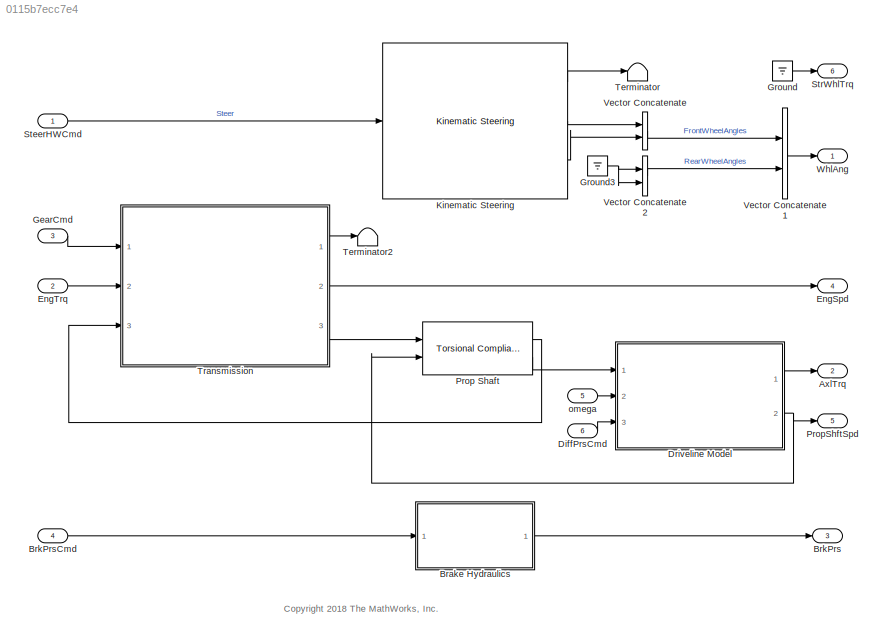
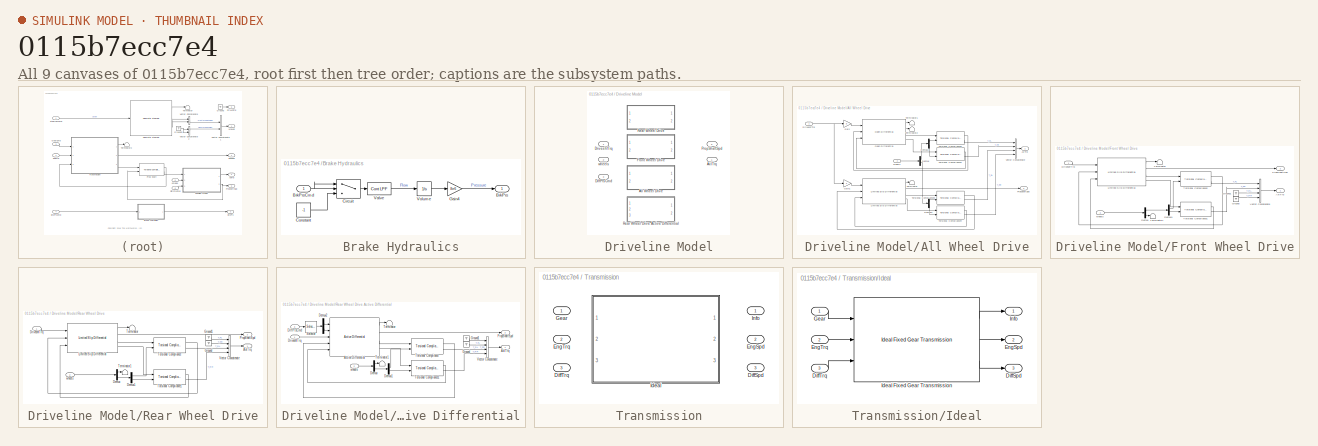
[diagram: thumbnail index - all 9 canvases of the model, root first then tree order]
MODEL slx_0115b7ecc7e4
KIND model
CONFIG AbsTol = auto
CONFIG EnableMultiTasking = off
CONFIG FixedStep = .001
CONFIG MaxStep = auto
CONFIG MinStep = auto
CONFIG RelTol = 1e-3
CONFIG SampleTimeConstraint = Unconstrained
CONFIG Solver = ode23tb
CONFIG SolverName = ode23tb
CONFIG StartTime = 0.0
CONFIG StopTime = inf
WORKSPACE source: MAT-file member
WORKSPACE Trans: struct (value not decoded)
BLOCK [Outport] AxlTrq
  IconDisplay = Port number
  Port = 2
BLOCK [SubSystem] Brake Hydraulics
  Ports = [1, 1]
  RequestExecContextInheritance = off
BLOCK [Outport] Brake Hydraulics/BrkPrs
  IconDisplay = Port number
BLOCK [Inport] Brake Hydraulics/BrkPrsCmd
  IconDisplay = Port number
BLOCK [Switch] Brake Hydraulics/Circuit
  Criteria = u2 ~= 0
  InputSameDT = off
  SaturateOnIntegerOverflow = off
BLOCK [Constant] Brake Hydraulics/Constant
  Value = -1
BLOCK [Gain] Brake Hydraulics/Gain4
  Gain = 8e6
  OutDataTypeStr = Inherit: Inherit via internal rule
  ParamDataTypeStr = Inherit: Inherit via internal rule
  SaturateOnIntegerOverflow = off
BLOCK [Reference] Brake Hydraulics/Valve  REF=autolibutils/Cont LPF
  Ports = [1, 1]
  SourceBlock = autolibutils/Cont LPF
  SourceProductBaseCode = PW
  SourceProductName = Powertrain Blockset
BLOCK [Integrator] Brake Hydraulics/Volume
  AbsoluteTolerance = 1e-3
  LimitOutput = on
  LowerSaturationLimit = 0
  Ports = [1, 1]
  UpperSaturationLimit = 1
BLOCK [Outport] BrkPrs
  IconDisplay = Port number
  Port = 3
  PortDimensions = 4
BLOCK [Inport] BrkPrsCmd
  IconDisplay = Port number
  Port = 4
  PortDimensions = 4
BLOCK [Inport] DiffPrsCmd
  IconDisplay = Port number
  Port = 6
  PortDimensions = 4
BLOCK [SubSystem] Driveline Model
  LabelModeActiveChoice = 4
  Ports = [3, 2]
  RequestExecContextInheritance = off
  Variant = on
  VariantControlMode = Label
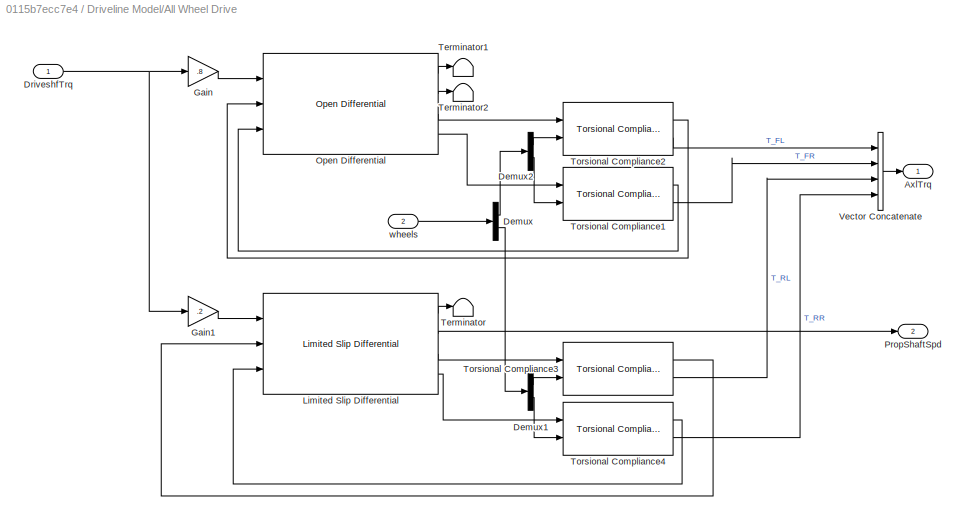
BLOCK [SubSystem] Driveline Model/All Wheel Drive
  Ports = [2, 2]
  RequestExecContextInheritance = off
  VariantControl = 2
BLOCK [Outport] Driveline Model/All Wheel Drive/AxlTrq
  IconDisplay = Port number
BLOCK [Demux] Driveline Model/All Wheel Drive/Demux
  DisplayOption = bar
  Outputs = [2,2]
  Ports = [1, 2]
BLOCK [Demux] Driveline Model/All Wheel Drive/Demux1
  DisplayOption = bar
  Outputs = 2
  Ports = [1, 2]
BLOCK [Demux] Driveline Model/All Wheel Drive/Demux2
  DisplayOption = bar
  Outputs = 2
  Ports = [1, 2]
BLOCK [Inport] Driveline Model/All Wheel Drive/DriveshfTrq
  IconDisplay = Port number
BLOCK [Gain] Driveline Model/All Wheel Drive/Gain
  Gain = .8
  OutDataTypeStr = Inherit: Inherit via internal rule
  ParamDataTypeStr = Inherit: Inherit via internal rule
  SaturateOnIntegerOverflow = off
BLOCK [Gain] Driveline Model/All Wheel Drive/Gain1
  Gain = .2
  OutDataTypeStr = Inherit: Inherit via internal rule
  ParamDataTypeStr = Inherit: Inherit via internal rule
  SaturateOnIntegerOverflow = off
BLOCK [Reference] Driveline Model/All Wheel Drive/Limited Slip Differential  REF=autolibshareddiff/Limited Slip Differential
  Ports = [3, 4]
  SourceBlock = autolibshareddiff/Limited Slip Differential
  SourceProductBaseCode = PW
  SourceProductName = Powertrain Blockset
  SourceType = Limited Slip Differential
BLOCK [Reference] Driveline Model/All Wheel Drive/Open Differential  REF=autolibshareddiff/Open Differential
  Ports = [3, 4]
  SourceBlock = autolibshareddiff/Open Differential
  SourceProductBaseCode = PW
  SourceProductName = Powertrain Blockset
  SourceType = Open Differential
BLOCK [Outport] Driveline Model/All Wheel Drive/PropShaftSpd
  IconDisplay = Port number
  Port = 2
BLOCK [Terminator] Driveline Model/All Wheel Drive/Terminator
BLOCK [Terminator] Driveline Model/All Wheel Drive/Terminator1
BLOCK [Terminator] Driveline Model/All Wheel Drive/Terminator2
BLOCK [Reference] Driveline Model/All Wheel Drive/Torsional Compliance1  REF=autolibsharedcoupling/Torsional Compliance
  Ports = [2, 2]
  SourceBlock = autolibsharedcoupling/Torsional Compliance
  SourceProductBaseCode = PW
  SourceProductName = Powertrain Blockset
  SourceType = Torsional Compliance
BLOCK [Reference] Driveline Model/All Wheel Drive/Torsional Compliance2  REF=autolibsharedcoupling/Torsional Compliance
  Ports = [2, 2]
  SourceBlock = autolibsharedcoupling/Torsional Compliance
  SourceProductBaseCode = PW
  SourceProductName = Powertrain Blockset
  SourceType = Torsional Compliance
BLOCK [Reference] Driveline Model/All Wheel Drive/Torsional Compliance3  REF=autolibsharedcoupling/Torsional Compliance
  Ports = [2, 2]
  SourceBlock = autolibsharedcoupling/Torsional Compliance
  SourceProductBaseCode = PW
  SourceProductName = Powertrain Blockset
  SourceType = Torsional Compliance
BLOCK [Reference] Driveline Model/All Wheel Drive/Torsional Compliance4  REF=autolibsharedcoupling/Torsional Compliance
  Ports = [2, 2]
  SourceBlock = autolibsharedcoupling/Torsional Compliance
  SourceProductBaseCode = PW
  SourceProductName = Powertrain Blockset
  SourceType = Torsional Compliance
BLOCK [Concatenate] Driveline Model/All Wheel Drive/Vector Concatenate
  NumInputs = 4
  Ports = [4, 1]
BLOCK [Inport] Driveline Model/All Wheel Drive/wheels
  IconDisplay = Port number
  Port = 2
BLOCK [Outport] Driveline Model/AxlTrq
  IconDisplay = Port number
BLOCK [Inport] Driveline Model/DiffPrsCmd
  IconDisplay = Port number
  Port = 3
BLOCK [Inport] Driveline Model/DriveshfTrq
  IconDisplay = Port number
BLOCK [SubSystem] Driveline Model/Front Wheel Drive
  Ports = [2, 2]
  RequestExecContextInheritance = off
  VariantControl = 1
BLOCK [Outport] Driveline Model/Front Wheel Drive/AxlTrq
  IconDisplay = Port number
BLOCK [Demux] Driveline Model/Front Wheel Drive/Demux
  DisplayOption = bar
  Outputs = [2,2]
  Ports = [1, 2]
BLOCK [Demux] Driveline Model/Front Wheel Drive/Demux1
  DisplayOption = bar
  Outputs = 2
  Ports = [1, 2]
BLOCK [Inport] Driveline Model/Front Wheel Drive/DriveshfTrq
  IconDisplay = Port number
BLOCK [Ground] Driveline Model/Front Wheel Drive/Ground
BLOCK [Ground] Driveline Model/Front Wheel Drive/Ground1
BLOCK [Reference] Driveline Model/Front Wheel Drive/Limited Slip Differential  REF=autolibshareddiff/Limited Slip Differential
  Ports = [3, 4]
  SourceBlock = autolibshareddiff/Limited Slip Differential
  SourceProductBaseCode = PW
  SourceProductName = Powertrain Blockset
  SourceType = Limited Slip Differential
BLOCK [Outport] Driveline Model/Front Wheel Drive/PropShaftSpd
  IconDisplay = Port number
  Port = 2
BLOCK [Terminator] Driveline Model/Front Wheel Drive/Terminator
BLOCK [Terminator] Driveline Model/Front Wheel Drive/Terminator1
BLOCK [Reference] Driveline Model/Front Wheel Drive/Torsional Compliance1  REF=autolibsharedcoupling/Torsional Compliance
  Ports = [2, 2]
  SourceBlock = autolibsharedcoupling/Torsional Compliance
  SourceProductBaseCode = PW
  SourceProductName = Powertrain Blockset
  SourceType = Torsional Compliance
BLOCK [Reference] Driveline Model/Front Wheel Drive/Torsional Compliance2  REF=autolibsharedcoupling/Torsional Compliance
  Ports = [2, 2]
  SourceBlock = autolibsharedcoupling/Torsional Compliance
  SourceProductBaseCode = PW
  SourceProductName = Powertrain Blockset
  SourceType = Torsional Compliance
BLOCK [Concatenate] Driveline Model/Front Wheel Drive/Vector Concatenate
  NumInputs = 4
  Ports = [4, 1]
BLOCK [Inport] Driveline Model/Front Wheel Drive/wheels
  IconDisplay = Port number
  Port = 2
BLOCK [Outport] Driveline Model/PropShaftSpd
  IconDisplay = Port number
  Port = 2
BLOCK [SubSystem] Driveline Model/Rear Wheel Drive
  Ports = [2, 2]
  RequestExecContextInheritance = off
  VariantControl = 0
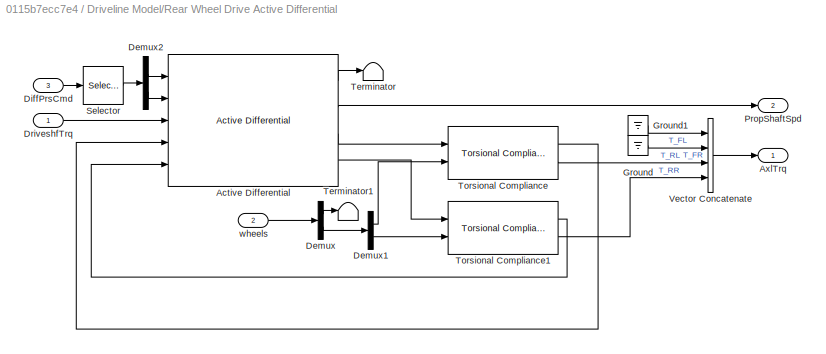
BLOCK [SubSystem] Driveline Model/Rear Wheel Drive Active Differential
  Ports = [3, 2]
  RequestExecContextInheritance = off
  VariantControl = 4
BLOCK [Reference] Driveline Model/Rear Wheel Drive Active Differential/Active Differential  REF=autolibshareddiff/Active Differential
  Ports = [5, 4]
  SourceBlock = autolibshareddiff/Active Differential
  SourceProductBaseCode = PW
  SourceProductName = Powertrain Blockset
  SourceType = Active Slip Differential
BLOCK [Outport] Driveline Model/Rear Wheel Drive Active Differential/AxlTrq
  IconDisplay = Port number
BLOCK [Demux] Driveline Model/Rear Wheel Drive Active Differential/Demux
  DisplayOption = bar
  Outputs = [2,2]
  Ports = [1, 2]
BLOCK [Demux] Driveline Model/Rear Wheel Drive Active Differential/Demux1
  DisplayOption = bar
  Outputs = 2
  Ports = [1, 2]
BLOCK [Demux] Driveline Model/Rear Wheel Drive Active Differential/Demux2
  DisplayOption = bar
  Outputs = 2
  Ports = [1, 2]
BLOCK [Inport] Driveline Model/Rear Wheel Drive Active Differential/DiffPrsCmd
  IconDisplay = Port number
  Port = 3
BLOCK [Inport] Driveline Model/Rear Wheel Drive Active Differential/DriveshfTrq
  IconDisplay = Port number
BLOCK [Ground] Driveline Model/Rear Wheel Drive Active Differential/Ground
BLOCK [Ground] Driveline Model/Rear Wheel Drive Active Differential/Ground1
BLOCK [Outport] Driveline Model/Rear Wheel Drive Active Differential/PropShaftSpd
  IconDisplay = Port number
  Port = 2
BLOCK [Selector] Driveline Model/Rear Wheel Drive Active Differential/Selector
  IndexOptions = Index vector (dialog)
  Indices = [3 4]
  InputPortWidth = 4
  OutputSizes = 1
  Ports = [1, 1]
BLOCK [Terminator] Driveline Model/Rear Wheel Drive Active Differential/Terminator
BLOCK [Terminator] Driveline Model/Rear Wheel Drive Active Differential/Terminator1
BLOCK [Reference] Driveline Model/Rear Wheel Drive Active Differential/Torsional Compliance  REF=autolibsharedcoupling/Torsional Compliance
  Ports = [2, 2]
  SourceBlock = autolibsharedcoupling/Torsional Compliance
  SourceProductBaseCode = PW
  SourceProductName = Powertrain Blockset
  SourceType = Torsional Compliance
BLOCK [Reference] Driveline Model/Rear Wheel Drive Active Differential/Torsional Compliance1  REF=autolibsharedcoupling/Torsional Compliance
  Ports = [2, 2]
  SourceBlock = autolibsharedcoupling/Torsional Compliance
  SourceProductBaseCode = PW
  SourceProductName = Powertrain Blockset
  SourceType = Torsional Compliance
BLOCK [Concatenate] Driveline Model/Rear Wheel Drive Active Differential/Vector Concatenate
  NumInputs = 4
  Ports = [4, 1]
BLOCK [Inport] Driveline Model/Rear Wheel Drive Active Differential/wheels
  IconDisplay = Port number
  Port = 2
BLOCK [Outport] Driveline Model/Rear Wheel Drive/AxlTrq
  IconDisplay = Port number
BLOCK [Demux] Driveline Model/Rear Wheel Drive/Demux
  DisplayOption = bar
  Outputs = [2,2]
  Ports = [1, 2]
BLOCK [Demux] Driveline Model/Rear Wheel Drive/Demux1
  DisplayOption = bar
  Outputs = 2
  Ports = [1, 2]
BLOCK [Inport] Driveline Model/Rear Wheel Drive/DriveshfTrq
  IconDisplay = Port number
BLOCK [Ground] Driveline Model/Rear Wheel Drive/Ground
BLOCK [Ground] Driveline Model/Rear Wheel Drive/Ground1
BLOCK [Reference] Driveline Model/Rear Wheel Drive/Limited Slip Differential  REF=autolibshareddiff/Limited Slip Differential
  Ports = [3, 4]
  SourceBlock = autolibshareddiff/Limited Slip Differential
  SourceProductBaseCode = PW
  SourceProductName = Powertrain Blockset
  SourceType = Limited Slip Differential
BLOCK [Outport] Driveline Model/Rear Wheel Drive/PropShaftSpd
  IconDisplay = Port number
  Port = 2
BLOCK [Terminator] Driveline Model/Rear Wheel Drive/Terminator
BLOCK [Terminator] Driveline Model/Rear Wheel Drive/Terminator1
BLOCK [Reference] Driveline Model/Rear Wheel Drive/Torsional Compliance  REF=autolibsharedcoupling/Torsional Compliance
  Ports = [2, 2]
  SourceBlock = autolibsharedcoupling/Torsional Compliance
  SourceProductBaseCode = PW
  SourceProductName = Powertrain Blockset
  SourceType = Torsional Compliance
BLOCK [Reference] Driveline Model/Rear Wheel Drive/Torsional Compliance1  REF=autolibsharedcoupling/Torsional Compliance
  Ports = [2, 2]
  SourceBlock = autolibsharedcoupling/Torsional Compliance
  SourceProductBaseCode = PW
  SourceProductName = Powertrain Blockset
  SourceType = Torsional Compliance
BLOCK [Concatenate] Driveline Model/Rear Wheel Drive/Vector Concatenate
  NumInputs = 4
  Ports = [4, 1]
BLOCK [Inport] Driveline Model/Rear Wheel Drive/wheels
  IconDisplay = Port number
  Port = 2
BLOCK [Inport] Driveline Model/wheels
  IconDisplay = Port number
  Port = 2
BLOCK [Outport] EngSpd
  IconDisplay = Port number
  Port = 4
  Unit = rad/s
BLOCK [Inport] EngTrq
  IconDisplay = Port number
  Port = 2
BLOCK [Inport] GearCmd
  IconDisplay = Port number
  OutDataTypeStr = int8
  Port = 3
BLOCK [Ground] Ground
BLOCK [Ground] Ground3
BLOCK [Reference] Kinematic Steering  REF=vehdynlibsteering/Kinematic Steering
  Ports = [1, 3]
  SourceBlock = vehdynlibsteering/Kinematic Steering
  SourceProductName = Vehicle Dynamics Blockset
  SourceType = Kinematic Steering
BLOCK [Reference] Prop Shaft  REF=autolibsharedcoupling/Torsional Compliance
  Ports = [2, 2]
  SourceBlock = autolibsharedcoupling/Torsional Compliance
  SourceProductBaseCode = PW
  SourceProductName = Powertrain Blockset
  SourceType = Torsional Compliance
BLOCK [Outport] PropShftSpd
  IconDisplay = Port number
  Port = 5
BLOCK [Inport] SteerHWCmd
  IconDisplay = Port number
BLOCK [Outport] StrWhlTrq
  IconDisplay = Port number
  Port = 6
  Unit = N*m
BLOCK [Terminator] Terminator
BLOCK [Terminator] Terminator2
BLOCK [SubSystem] Transmission
  LabelModeActiveChoice = 0
  Ports = [3, 3]
  RequestExecContextInheritance = off
  Variant = on
  VariantControlMode = Label
BLOCK [Outport] Transmission/DiffSpd
  IconDisplay = Port number
  Port = 3
BLOCK [Inport] Transmission/DiffTrq
  IconDisplay = Port number
  Port = 3
BLOCK [Outport] Transmission/EngSpd
  IconDisplay = Port number
  Port = 2
BLOCK [Inport] Transmission/EngTrq
  IconDisplay = Port number
  Port = 2
BLOCK [Inport] Transmission/Gear
  IconDisplay = Port number
BLOCK [SubSystem] Transmission/Ideal
  Ports = [3, 3]
  RequestExecContextInheritance = off
  VariantControl = 0
BLOCK [Outport] Transmission/Ideal/DiffSpd
  IconDisplay = Port number
  Port = 3
BLOCK [Inport] Transmission/Ideal/DiffTrq
  IconDisplay = Port number
  Port = 3
BLOCK [Outport] Transmission/Ideal/EngSpd
  IconDisplay = Port number
  Port = 2
BLOCK [Inport] Transmission/Ideal/EngTrq
  IconDisplay = Port number
  Port = 2
BLOCK [Inport] Transmission/Ideal/Gear
  IconDisplay = Port number
BLOCK [Reference] Transmission/Ideal/Ideal Fixed Gear Transmission  REF=autolibsharedtransfixedgear/Ideal Fixed Gear Transmission
  Ports = [3, 3]
  SourceBlock = autolibsharedtransfixedgear/Ideal Fixed Gear Transmission
  SourceProductBaseCode = PW
  SourceProductName = Powertrain Blockset
  SourceType = Ideal Fixed Gear Transmission
BLOCK [Outport] Transmission/Ideal/Info
  IconDisplay = Port number
BLOCK [Outport] Transmission/Info
  IconDisplay = Port number
BLOCK [Concatenate] Vector Concatenate
  Ports = [2, 1]
BLOCK [Concatenate] Vector Concatenate1
  Ports = [2, 1]
BLOCK [Concatenate] Vector Concatenate2
  Ports = [2, 1]
BLOCK [Outport] WhlAng
  IconDisplay = Port number
  Unit = rad
BLOCK [Inport] omega
  IconDisplay = Port number
  Port = 5
ANNOTATION (root): <copyright redacted>
NET Brake Hydraulics/BrkPrsCmd:1 -> Brake Hydraulics/Circuit:1, Brake Hydraulics/Circuit:2
LINE Brake Hydraulics/Circuit:1 -> Brake Hydraulics/Valve:1
LINE Brake Hydraulics/Constant:1 -> Brake Hydraulics/Circuit:3
LINE Brake Hydraulics/Gain4:1 -> Brake Hydraulics/BrkPrs:1
LINE Brake Hydraulics/Valve:1 -> Brake Hydraulics/Volume:1
LINE Brake Hydraulics/Volume:1 -> Brake Hydraulics/Gain4:1
LINE Brake Hydraulics:1 -> BrkPrs:1
LINE BrkPrsCmd:1 -> Brake Hydraulics:1
LINE DiffPrsCmd:1 -> Driveline Model:3
LINE Driveline Model/All Wheel Drive/Demux1:1 -> Driveline Model/All Wheel Drive/Torsional Compliance3:2
LINE Driveline Model/All Wheel Drive/Demux1:2 -> Driveline Model/All Wheel Drive/Torsional Compliance4:2
LINE Driveline Model/All Wheel Drive/Demux2:1 -> Driveline Model/All Wheel Drive/Torsional Compliance2:2
LINE Driveline Model/All Wheel Drive/Demux2:2 -> Driveline Model/All Wheel Drive/Torsional Compliance1:2
LINE Driveline Model/All Wheel Drive/Demux:1 -> Driveline Model/All Wheel Drive/Demux2:1
LINE Driveline Model/All Wheel Drive/Demux:2 -> Driveline Model/All Wheel Drive/Demux1:1
NET Driveline Model/All Wheel Drive/DriveshfTrq:1 -> Driveline Model/All Wheel Drive/Gain1:1, Driveline Model/All Wheel Drive/Gain:1
LINE Driveline Model/All Wheel Drive/Gain1:1 -> Driveline Model/All Wheel Drive/Limited Slip Differential:1
LINE Driveline Model/All Wheel Drive/Gain:1 -> Driveline Model/All Wheel Drive/Open Differential:1
LINE Driveline Model/All Wheel Drive/Limited Slip Differential:1 -> Driveline Model/All Wheel Drive/Terminator:1
LINE Driveline Model/All Wheel Drive/Limited Slip Differential:2 -> Driveline Model/All Wheel Drive/PropShaftSpd:1
LINE Driveline Model/All Wheel Drive/Limited Slip Differential:3 -> Driveline Model/All Wheel Drive/Torsional Compliance3:1
LINE Driveline Model/All Wheel Drive/Limited Slip Differential:4 -> Driveline Model/All Wheel Drive/Torsional Compliance4:1
LINE Driveline Model/All Wheel Drive/Open Differential:1 -> Driveline Model/All Wheel Drive/Terminator1:1
LINE Driveline Model/All Wheel Drive/Open Differential:2 -> Driveline Model/All Wheel Drive/Terminator2:1
LINE Driveline Model/All Wheel Drive/Open Differential:3 -> Driveline Model/All Wheel Drive/Torsional Compliance2:1
LINE Driveline Model/All Wheel Drive/Open Differential:4 -> Driveline Model/All Wheel Drive/Torsional Compliance1:1
LINE Driveline Model/All Wheel Drive/Torsional Compliance1:1 -> Driveline Model/All Wheel Drive/Open Differential:3
LINE Driveline Model/All Wheel Drive/Torsional Compliance1:2 -> Driveline Model/All Wheel Drive/Vector Concatenate:2
LINE Driveline Model/All Wheel Drive/Torsional Compliance2:1 -> Driveline Model/All Wheel Drive/Open Differential:2
LINE Driveline Model/All Wheel Drive/Torsional Compliance2:2 -> Driveline Model/All Wheel Drive/Vector Concatenate:1
LINE Driveline Model/All Wheel Drive/Torsional Compliance3:1 -> Driveline Model/All Wheel Drive/Limited Slip Differential:2
LINE Driveline Model/All Wheel Drive/Torsional Compliance3:2 -> Driveline Model/All Wheel Drive/Vector Concatenate:3
LINE Driveline Model/All Wheel Drive/Torsional Compliance4:1 -> Driveline Model/All Wheel Drive/Limited Slip Differential:3
LINE Driveline Model/All Wheel Drive/Torsional Compliance4:2 -> Driveline Model/All Wheel Drive/Vector Concatenate:4
LINE Driveline Model/All Wheel Drive/Vector Concatenate:1 -> Driveline Model/All Wheel Drive/AxlTrq:1
LINE Driveline Model/All Wheel Drive/wheels:1 -> Driveline Model/All Wheel Drive/Demux:1
LINE Driveline Model/Front Wheel Drive/Demux1:1 -> Driveline Model/Front Wheel Drive/Torsional Compliance2:2
LINE Driveline Model/Front Wheel Drive/Demux1:2 -> Driveline Model/Front Wheel Drive/Torsional Compliance1:2
LINE Driveline Model/Front Wheel Drive/Demux:1 -> Driveline Model/Front Wheel Drive/Demux1:1
LINE Driveline Model/Front Wheel Drive/Demux:2 -> Driveline Model/Front Wheel Drive/Terminator1:1
LINE Driveline Model/Front Wheel Drive/DriveshfTrq:1 -> Driveline Model/Front Wheel Drive/Limited Slip Differential:1
LINE Driveline Model/Front Wheel Drive/Ground1:1 -> Driveline Model/Front Wheel Drive/Vector Concatenate:3
LINE Driveline Model/Front Wheel Drive/Ground:1 -> Driveline Model/Front Wheel Drive/Vector Concatenate:4
LINE Driveline Model/Front Wheel Drive/Limited Slip Differential:1 -> Driveline Model/Front Wheel Drive/Terminator:1
LINE Driveline Model/Front Wheel Drive/Limited Slip Differential:2 -> Driveline Model/Front Wheel Drive/PropShaftSpd:1
LINE Driveline Model/Front Wheel Drive/Limited Slip Differential:3 -> Driveline Model/Front Wheel Drive/Torsional Compliance2:1
LINE Driveline Model/Front Wheel Drive/Limited Slip Differential:4 -> Driveline Model/Front Wheel Drive/Torsional Compliance1:1
LINE Driveline Model/Front Wheel Drive/Torsional Compliance1:1 -> Driveline Model/Front Wheel Drive/Limited Slip Differential:3
LINE Driveline Model/Front Wheel Drive/Torsional Compliance1:2 -> Driveline Model/Front Wheel Drive/Vector Concatenate:2
LINE Driveline Model/Front Wheel Drive/Torsional Compliance2:1 -> Driveline Model/Front Wheel Drive/Limited Slip Differential:2
LINE Driveline Model/Front Wheel Drive/Torsional Compliance2:2 -> Driveline Model/Front Wheel Drive/Vector Concatenate:1
LINE Driveline Model/Front Wheel Drive/Vector Concatenate:1 -> Driveline Model/Front Wheel Drive/AxlTrq:1
LINE Driveline Model/Front Wheel Drive/wheels:1 -> Driveline Model/Front Wheel Drive/Demux:1
LINE Driveline Model/Rear Wheel Drive Active Differential/Active Differential:1 -> Driveline Model/Rear Wheel Drive Active Differential/Terminator:1
LINE Driveline Model/Rear Wheel Drive Active Differential/Active Differential:2 -> Driveline Model/Rear Wheel Drive Active Differential/PropShaftSpd:1
LINE Driveline Model/Rear Wheel Drive Active Differential/Active Differential:3 -> Driveline Model/Rear Wheel Drive Active Differential/Torsional Compliance:1
LINE Driveline Model/Rear Wheel Drive Active Differential/Active Differential:4 -> Driveline Model/Rear Wheel Drive Active Differential/Torsional Compliance1:1
LINE Driveline Model/Rear Wheel Drive Active Differential/Demux1:1 -> Driveline Model/Rear Wheel Drive Active Differential/Torsional Compliance:2
LINE Driveline Model/Rear Wheel Drive Active Differential/Demux1:2 -> Driveline Model/Rear Wheel Drive Active Differential/Torsional Compliance1:2
LINE Driveline Model/Rear Wheel Drive Active Differential/Demux2:1 -> Driveline Model/Rear Wheel Drive Active Differential/Active Differential:1
LINE Driveline Model/Rear Wheel Drive Active Differential/Demux2:2 -> Driveline Model/Rear Wheel Drive Active Differential/Active Differential:2
LINE Driveline Model/Rear Wheel Drive Active Differential/Demux:1 -> Driveline Model/Rear Wheel Drive Active Differential/Terminator1:1
LINE Driveline Model/Rear Wheel Drive Active Differential/Demux:2 -> Driveline Model/Rear Wheel Drive Active Differential/Demux1:1
LINE Driveline Model/Rear Wheel Drive Active Differential/DiffPrsCmd:1 -> Driveline Model/Rear Wheel Drive Active Differential/Selector:1
LINE Driveline Model/Rear Wheel Drive Active Differential/DriveshfTrq:1 -> Driveline Model/Rear Wheel Drive Active Differential/Active Differential:3
LINE Driveline Model/Rear Wheel Drive Active Differential/Ground1:1 -> Driveline Model/Rear Wheel Drive Active Differential/Vector Concatenate:1
LINE Driveline Model/Rear Wheel Drive Active Differential/Ground:1 -> Driveline Model/Rear Wheel Drive Active Differential/Vector Concatenate:2
LINE Driveline Model/Rear Wheel Drive Active Differential/Selector:1 -> Driveline Model/Rear Wheel Drive Active Differential/Demux2:1
LINE Driveline Model/Rear Wheel Drive Active Differential/Torsional Compliance1:1 -> Driveline Model/Rear Wheel Drive Active Differential/Active Differential:5
LINE Driveline Model/Rear Wheel Drive Active Differential/Torsional Compliance1:2 -> Driveline Model/Rear Wheel Drive Active Differential/Vector Concatenate:4
LINE Driveline Model/Rear Wheel Drive Active Differential/Torsional Compliance:1 -> Driveline Model/Rear Wheel Drive Active Differential/Active Differential:4
LINE Driveline Model/Rear Wheel Drive Active Differential/Torsional Compliance:2 -> Driveline Model/Rear Wheel Drive Active Differential/Vector Concatenate:3
LINE Driveline Model/Rear Wheel Drive Active Differential/Vector Concatenate:1 -> Driveline Model/Rear Wheel Drive Active Differential/AxlTrq:1
LINE Driveline Model/Rear Wheel Drive Active Differential/wheels:1 -> Driveline Model/Rear Wheel Drive Active Differential/Demux:1
LINE Driveline Model/Rear Wheel Drive/Demux1:1 -> Driveline Model/Rear Wheel Drive/Torsional Compliance:2
LINE Driveline Model/Rear Wheel Drive/Demux1:2 -> Driveline Model/Rear Wheel Drive/Torsional Compliance1:2
LINE Driveline Model/Rear Wheel Drive/Demux:1 -> Driveline Model/Rear Wheel Drive/Terminator1:1
LINE Driveline Model/Rear Wheel Drive/Demux:2 -> Driveline Model/Rear Wheel Drive/Demux1:1
LINE Driveline Model/Rear Wheel Drive/DriveshfTrq:1 -> Driveline Model/Rear Wheel Drive/Limited Slip Differential:1
LINE Driveline Model/Rear Wheel Drive/Ground1:1 -> Driveline Model/Rear Wheel Drive/Vector Concatenate:1
LINE Driveline Model/Rear Wheel Drive/Ground:1 -> Driveline Model/Rear Wheel Drive/Vector Concatenate:2
LINE Driveline Model/Rear Wheel Drive/Limited Slip Differential:1 -> Driveline Model/Rear Wheel Drive/Terminator:1
LINE Driveline Model/Rear Wheel Drive/Limited Slip Differential:2 -> Driveline Model/Rear Wheel Drive/PropShaftSpd:1
LINE Driveline Model/Rear Wheel Drive/Limited Slip Differential:3 -> Driveline Model/Rear Wheel Drive/Torsional Compliance:1
LINE Driveline Model/Rear Wheel Drive/Limited Slip Differential:4 -> Driveline Model/Rear Wheel Drive/Torsional Compliance1:1
LINE Driveline Model/Rear Wheel Drive/Torsional Compliance1:1 -> Driveline Model/Rear Wheel Drive/Limited Slip Differential:3
LINE Driveline Model/Rear Wheel Drive/Torsional Compliance1:2 -> Driveline Model/Rear Wheel Drive/Vector Concatenate:4
LINE Driveline Model/Rear Wheel Drive/Torsional Compliance:1 -> Driveline Model/Rear Wheel Drive/Limited Slip Differential:2
LINE Driveline Model/Rear Wheel Drive/Torsional Compliance:2 -> Driveline Model/Rear Wheel Drive/Vector Concatenate:3
LINE Driveline Model/Rear Wheel Drive/Vector Concatenate:1 -> Driveline Model/Rear Wheel Drive/AxlTrq:1
LINE Driveline Model/Rear Wheel Drive/wheels:1 -> Driveline Model/Rear Wheel Drive/Demux:1
LINE Driveline Model:1 -> AxlTrq:1
NET Driveline Model:2 -> Prop Shaft:2, PropShftSpd:1
LINE EngTrq:1 -> Transmission:2
LINE GearCmd:1 -> Transmission:1
NET Ground3:1 -> Vector Concatenate2:1, Vector Concatenate2:2
LINE Ground:1 -> StrWhlTrq:1
LINE Kinematic Steering:1 -> Terminator:1
LINE Kinematic Steering:2 -> Vector Concatenate:1
LINE Kinematic Steering:3 -> Vector Concatenate:2
LINE Prop Shaft:1 -> Transmission:3
LINE Prop Shaft:2 -> Driveline Model:1
LINE SteerHWCmd:1 -> Kinematic Steering:1
LINE Transmission/Ideal/DiffTrq:1 -> Transmission/Ideal/Ideal Fixed Gear Transmission:3
LINE Transmission/Ideal/EngTrq:1 -> Transmission/Ideal/Ideal Fixed Gear Transmission:2
LINE Transmission/Ideal/Gear:1 -> Transmission/Ideal/Ideal Fixed Gear Transmission:1
LINE Transmission/Ideal/Ideal Fixed Gear Transmission:1 -> Transmission/Ideal/Info:1
LINE Transmission/Ideal/Ideal Fixed Gear Transmission:2 -> Transmission/Ideal/EngSpd:1
LINE Transmission/Ideal/Ideal Fixed Gear Transmission:3 -> Transmission/Ideal/DiffSpd:1
LINE Transmission:1 -> Terminator2:1
LINE Transmission:2 -> EngSpd:1
LINE Transmission:3 -> Prop Shaft:1
LINE Vector Concatenate1:1 -> WhlAng:1
LINE Vector Concatenate2:1 -> Vector Concatenate1:2
LINE Vector Concatenate:1 -> Vector Concatenate1:1
LINE omega:1 -> Driveline Model:2
note: NET lines group one-source signal fan-out (src -> all destinations, sorted); 1:1 wires keep LINE
